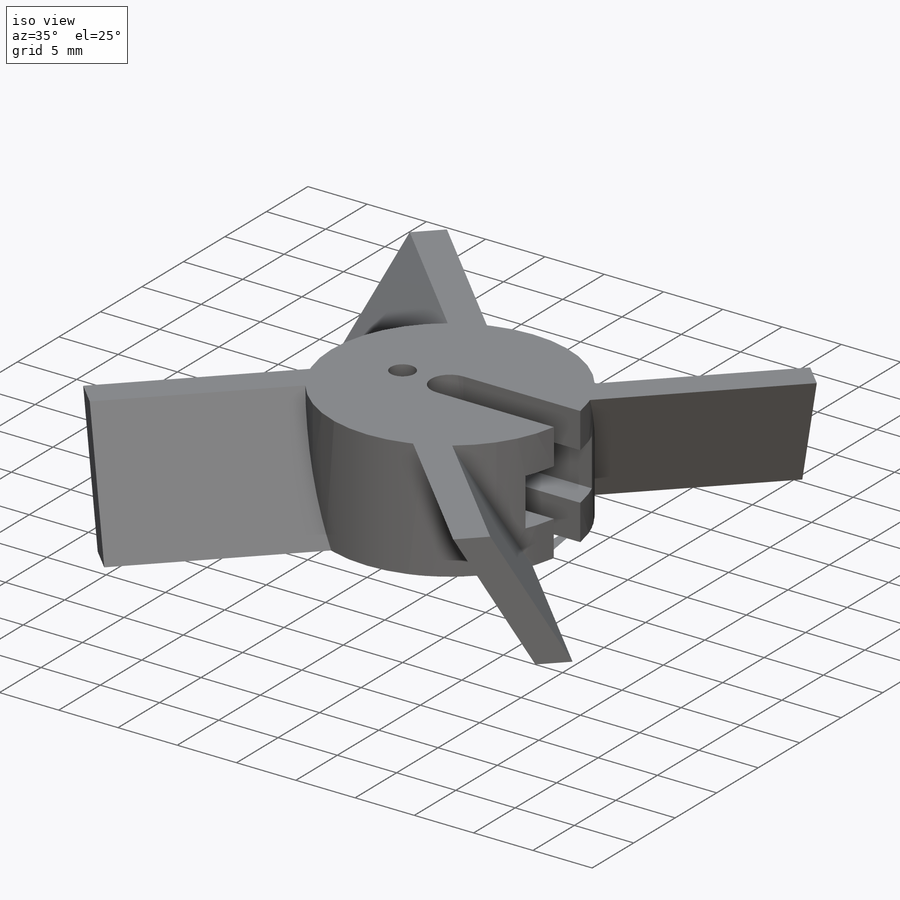
[diagram: iso view]
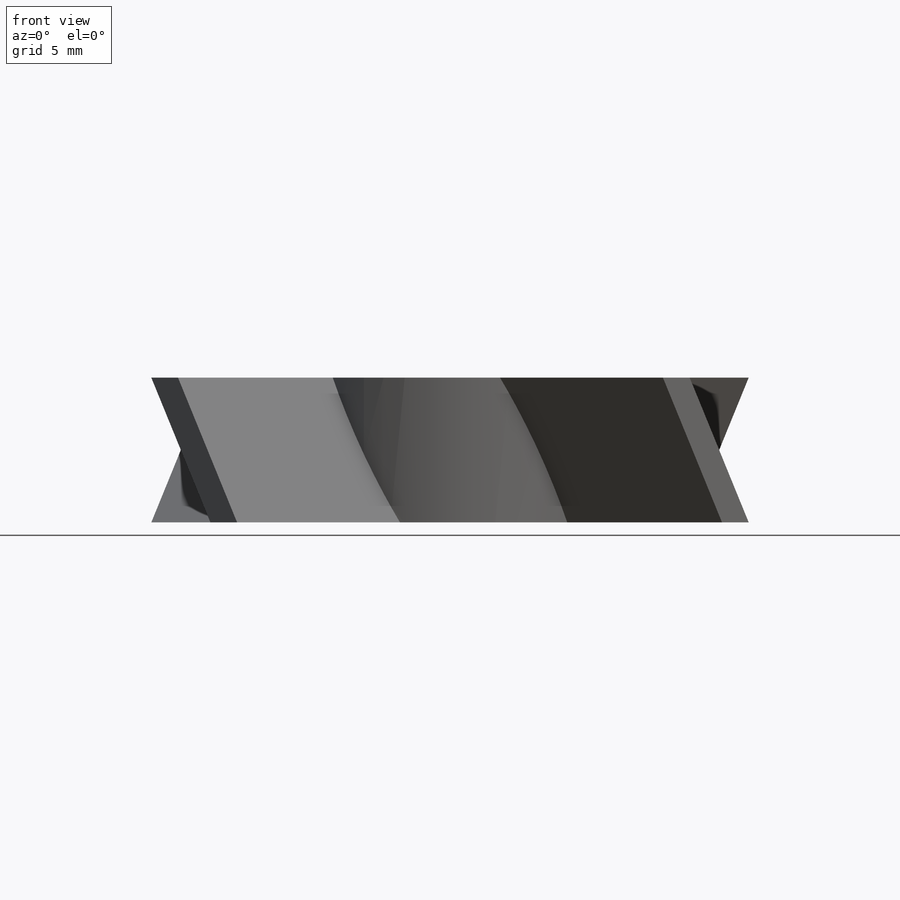
[diagram: front view]
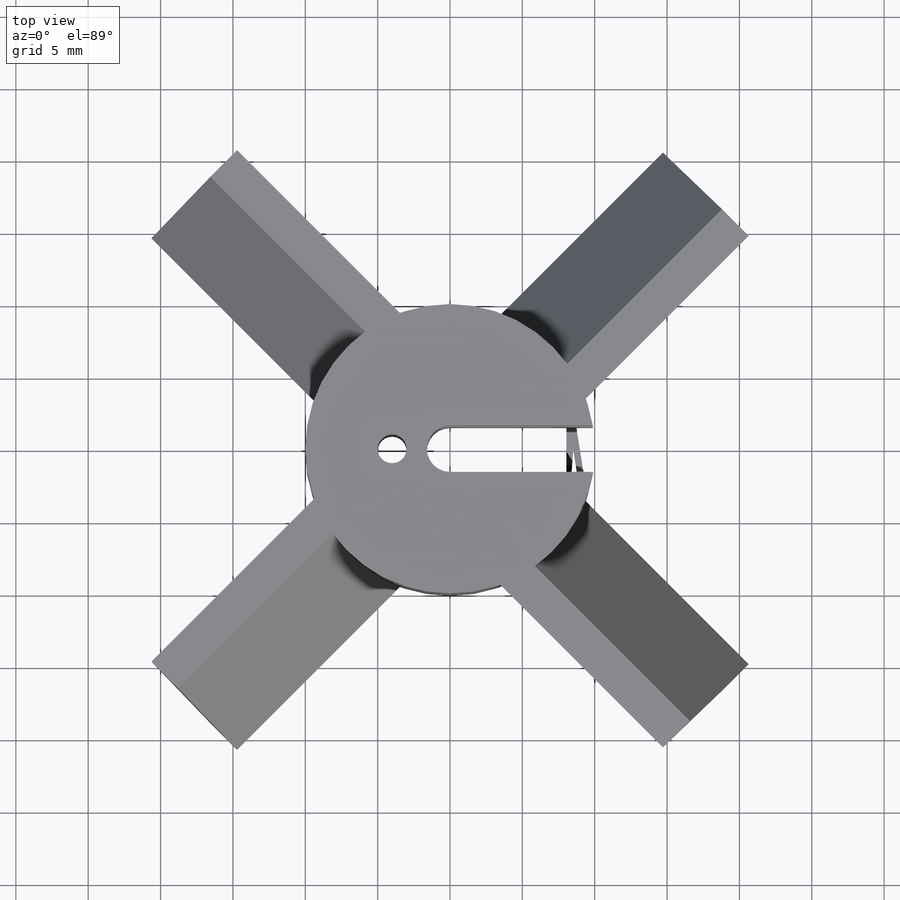
[diagram: top view]
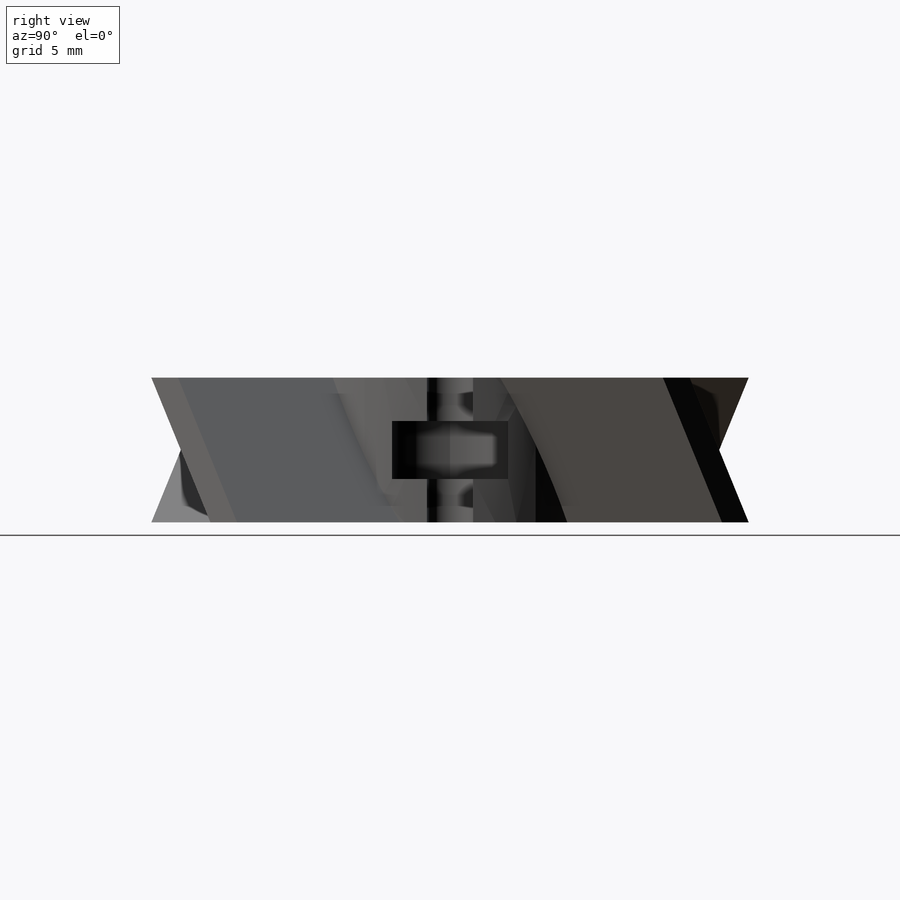
[diagram: right view]
SOLIDWORKS PART (.sldprt)
format: sldprt  version: not decoded by parser v0  size: 247,808 bytes
history: native  units: mm
features: sketch x6, cut_extrude x4, plane x4, extrude x2, material x1, fillet x1, pattern_circular x1 (+13 scaffold rows collapsed)
feature tree (32):
  scaffold x13  (default folders/planes/origin — collapsed)
  material  "Acrylic (Medium-high impact)"
  sketch  "Sketch1"  dims[D1=20.0mm]
  extrude  "Boss-Extrude1"  Depth=10mm
  sketch  "Sketch3"  dims[D1=3.2mm]
  cut_extrude  "Cut-Extrude2"  [1 undecoded]
  plane  "Plane6"
  sketch  "Sketch7"  dims[c1.D1=~4.904084mm c1.D2=~5.344194mm c2.D1=0.0mm c2.D2=0.0mm c2.D3=~5.344194mm c3.D3=90.0deg c4.D3=3.2mm]
  cut_extrude  "Cut-Extrude6"  Depth=10mm
  sketch  "Sketch9"  dims[D1=2.0mm D2=4.0mm]
  cut_extrude  "Cut-Extrude7"  [1 undecoded]
  sketch  "Sketch10"  dims[c1.D1=~4.310386mm c1.D2=~7.697117mm c2.D1=4.0mm c2.D2=5.0mm c2.D3=8.0mm c2.D4=4.0mm]
  cut_extrude  "Cut-Extrude8"  Depth=17mm
  fillet  "Fillet1"  Radius=4mm
  plane  "Plane7"
  plane  "Plane8"
  plane  "Plane9"
  sketch  "Sketch13"  dims[c1.D1=~3.726545mm c1.D2=~1.12953mm c2.D1=~2.25906mm c2.D2=10.0mm c2.D3=~11.025674mm c3.D3=60.0deg c3.D4=5.0mm c3.D5=0.0mm c3.D6=~41.093573mm c3.D1=~0.240346mm c4.D6=~2.368191mm]
  extrude  "Boss-Extrude3"  Depth=15mm
  pattern_circular  "CirPattern2"  Count=4 Angle=360deg
decode coverage: 12 of 14 modeling features carry decoded parameters
note: ~ marks probable driven/reference dimensions
note: 2 parameter values undecoded
note: suppression state not decoded; provenance and decode notes live in map.json
